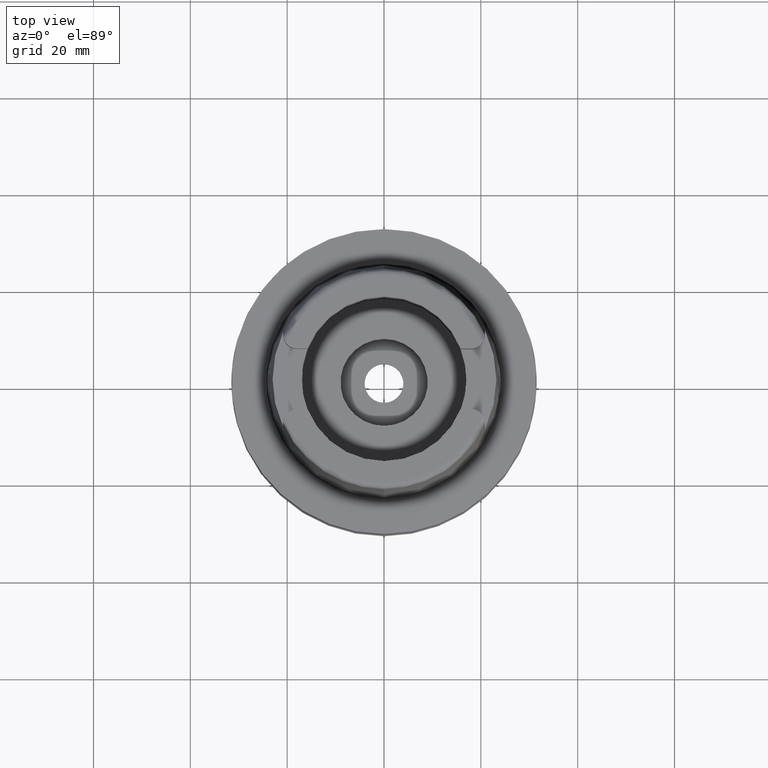
[diagram: clean part render]
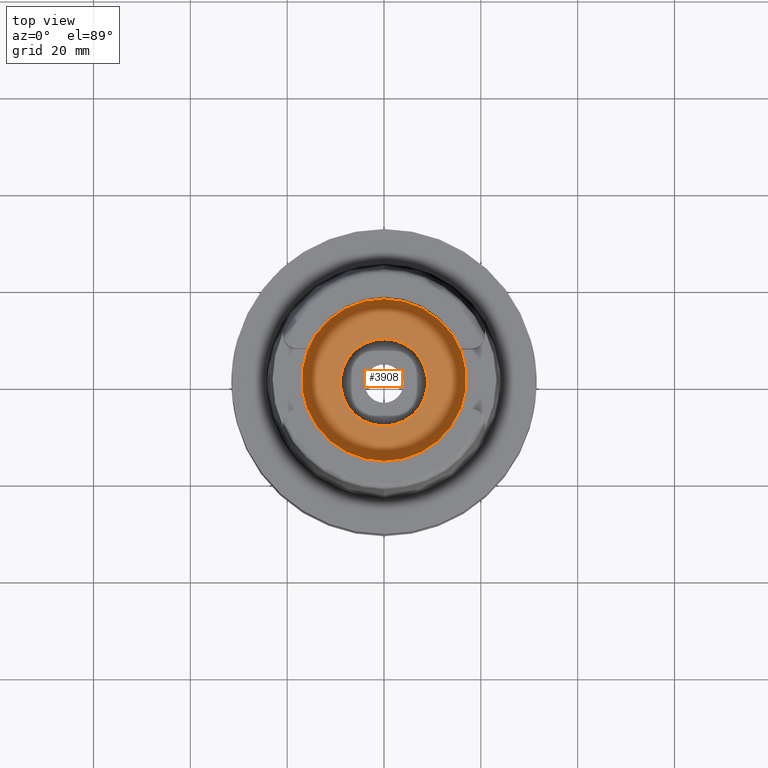
[diagram: same view with one face highlighted and labeled with its STEP entity id]
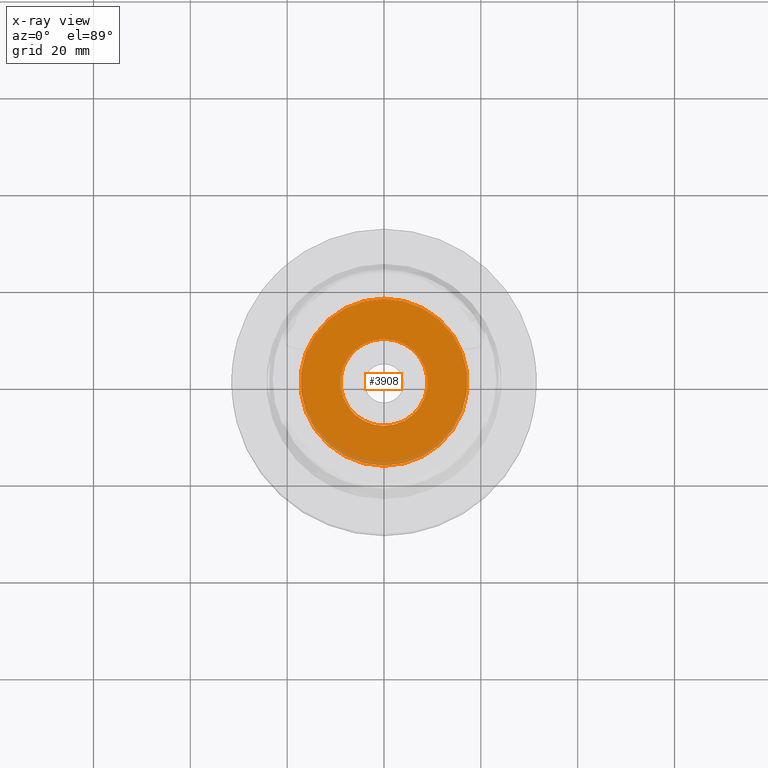
[diagram: x-ray of the same camera — body ghosted, the highlighted face saturated]
A machine part, top view. The second image highlights one B-rep face of the part: STEP entity #3908.
The next image is the same camera in x-ray: the body ghosted, the highlighted face saturated — about 6% of this face is hidden behind the body in this view.
In plain terms, the highlighted planar face has unit normal (0, 0, 1).
Its self-contained STEP definition (entity closure, byte-faithful):
#1905=CARTESIAN_POINT('',(0.E0,0.E0,-9.95E0));
#1906=DIRECTION('',(0.E0,0.E0,-1.E0));
#1907=DIRECTION('',(0.E0,-1.E0,0.E0));
#1908=AXIS2_PLACEMENT_3D('',#1905,#1906,#1907);
#1913=CARTESIAN_POINT('',(0.E0,0.E0,-9.95E0));
#1914=DIRECTION('',(0.E0,0.E0,-1.E0));
#1915=DIRECTION('',(0.E0,1.E0,0.E0));
#1916=AXIS2_PLACEMENT_3D('',#1913,#1914,#1915);
#1921=CARTESIAN_POINT('',(0.E0,0.E0,-9.95E0));
#1922=DIRECTION('',(0.E0,0.E0,1.E0));
#1923=DIRECTION('',(0.E0,-1.E0,0.E0));
#1924=AXIS2_PLACEMENT_3D('',#1921,#1922,#1923);
#1929=CARTESIAN_POINT('',(0.E0,0.E0,-9.95E0));
#1930=DIRECTION('',(0.E0,0.E0,1.E0));
#1931=DIRECTION('',(0.E0,1.E0,0.E0));
#1932=AXIS2_PLACEMENT_3D('',#1929,#1930,#1931);
#2352=CARTESIAN_POINT('',(0.E0,1.725E1,-9.95E0));
#2353=VERTEX_POINT('',#2352);
#2354=CARTESIAN_POINT('',(0.E0,-1.725E1,-9.95E0));
#2355=VERTEX_POINT('',#2354);
#2356=CARTESIAN_POINT('',(0.E0,-9.E0,-9.95E0));
#2357=CARTESIAN_POINT('',(0.E0,9.E0,-9.95E0));
#2358=VERTEX_POINT('',#2356);
#2359=VERTEX_POINT('',#2357);
#3893=CARTESIAN_POINT('',(0.E0,0.E0,-9.95E0));
#3894=DIRECTION('',(0.E0,0.E0,1.E0));
#3895=DIRECTION('',(0.E0,1.E0,0.E0));
#3896=AXIS2_PLACEMENT_3D('',#3893,#3894,#3895);
#3897=PLANE('',#3896);
#3899=ORIENTED_EDGE('',*,*,#3898,.T.);
#3901=ORIENTED_EDGE('',*,*,#3900,.T.);
#3902=EDGE_LOOP('',(#3899,#3901));
#3903=FACE_OUTER_BOUND('',#3902,.F.);
#3904=ORIENTED_EDGE('',*,*,#3886,.T.);
#3905=ORIENTED_EDGE('',*,*,#3875,.T.);
#3906=EDGE_LOOP('',(#3904,#3905));
#3907=FACE_BOUND('',#3906,.F.);
#1909=CIRCLE('',#1908,1.725E1);
#1917=CIRCLE('',#1916,1.725E1);
#1925=CIRCLE('',#1924,9.E0);
#1933=CIRCLE('',#1932,9.E0);
#3875=EDGE_CURVE('',#2359,#2358,#1933,.T.);
#3886=EDGE_CURVE('',#2358,#2359,#1925,.T.);
#3898=EDGE_CURVE('',#2355,#2353,#1909,.T.);
#3900=EDGE_CURVE('',#2353,#2355,#1917,.T.);
#3908=ADVANCED_FACE('',(#3903,#3907),#3897,.T.);